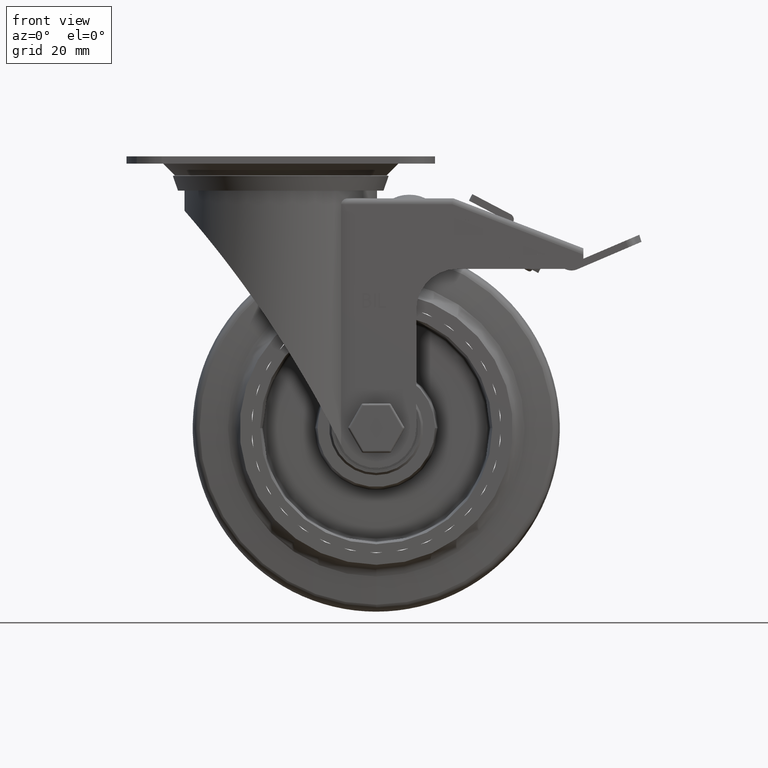
[diagram: clean part render]
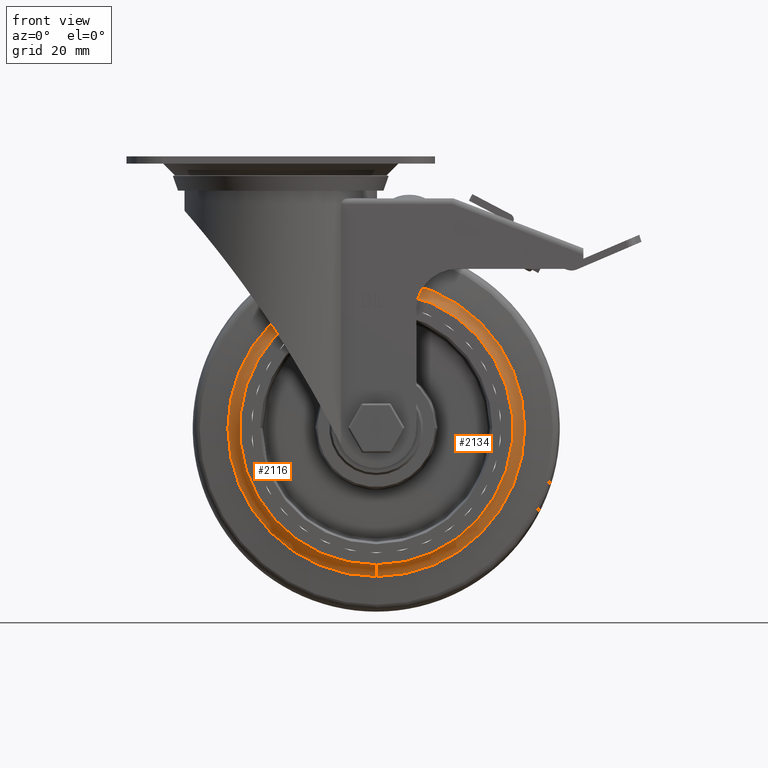
[diagram: same view with one multi-face feature highlighted, each face labeled with its STEP entity id]
A machine part, front view. The highlighted faces form ONE feature: a constant-radius fillet chain: 2 tangent blend faces with common blend radius 5 mm. The faces share edges in the B-rep.
Their STEP definitions:
[1] entity #2116 (Torus):
#2116=ADVANCED_FACE('67:3402',(#4028),#4029,.F.);
#4028=FACE_OUTER_BOUND('',#8106,.T.);
#4029=TOROIDAL_SURFACE('',#8107,0.0510980762113533,0.00500000000000001);
#8106=EDGE_LOOP('',(#18103,#18104,#18105,#18106));
#8107=AXIS2_PLACEMENT_3D('',#18107,#18108,#18109);
#18103=ORIENTED_EDGE('',*,*,#26281,.F.);
#18104=ORIENTED_EDGE('',*,*,#26282,.T.);
#18105=ORIENTED_EDGE('',*,*,#26283,.F.);
#18106=ORIENTED_EDGE('',*,*,#26284,.F.);
#18107=CARTESIAN_POINT('',(3.22129831291775E-17,-0.0219641016151377,0.0));
#18108=DIRECTION('',(2.48084430602702E-15,-1.0,-4.01205062912757E-31));
#18109=DIRECTION('',(0.0,4.01205062912757E-31,-1.0));
#26281=EDGE_CURVE('',#30384,#30385,#30386,.T.);
#26282=EDGE_CURVE('67:3438',#30384,#30387,#30388,.T.);
#26283=EDGE_CURVE('',#30389,#30387,#30390,.T.);
#26284=EDGE_CURVE('67:3441',#30385,#30389,#30391,.T.);
#30384=VERTEX_POINT('',#37156);
#30385=VERTEX_POINT('',#37157);
#30386=CIRCLE('',#37158,0.00500000000000001);
#30387=VERTEX_POINT('',#37159);
#30388=CIRCLE('',#37160,0.0505);
#30389=VERTEX_POINT('',#37161);
#30390=CIRCLE('',#37162,0.00500000000000001);
#30391=CIRCLE('',#37163,0.0465);
#37156=CARTESIAN_POINT('',(3.84086312337123E-17,-0.017,0.0505));
#37157=CARTESIAN_POINT('',(4.85722573273506E-17,-0.02,0.0465));
#37158=AXIS2_PLACEMENT_3D('',#47421,#47422,#47423);
#37159=CARTESIAN_POINT('',(5.54643409212634E-18,-0.017,-0.0505));
#37160=AXIS2_PLACEMENT_3D('',#47424,#47425,#47426);
#37161=CARTESIAN_POINT('',(2.16457452047693E-17,-0.02,-0.0465));
#37162=AXIS2_PLACEMENT_3D('',#47427,#47428,#47429);
#37163=AXIS2_PLACEMENT_3D('',#47430,#47431,#47432);
#47421=CARTESIAN_POINT('',(3.84706926766596E-17,-0.0219641016151377,0.0510980762113533));
#47422=DIRECTION('',(-1.0,-2.48084430602702E-15,1.22464679914735E-16));
#47423=DIRECTION('',(1.22464679914735E-16,-9.73892590568642E-32,1.0));
#47424=CARTESIAN_POINT('',(1.98978199027234E-17,-0.017,-6.82048606951684E-33));
#47425=DIRECTION('',(2.48084430602702E-15,-1.0,-4.01205062912757E-31));
#47426=DIRECTION('',(1.61721177720851E-16,5.41962586759289E-47,1.0));
#47427=CARTESIAN_POINT('',(2.59552735816954E-17,-0.0219641016151377,-0.0510980762113533));
#47428=DIRECTION('',(-1.0,-2.48084430602702E-15,1.22464679914735E-16));
#47429=DIRECTION('',(-1.22464679914735E-16,9.73892590568642E-32,-1.0));
#47430=CARTESIAN_POINT('',(2.73403528208045E-17,-0.02,-8.02410125825511E-33));
#47431=DIRECTION('',(2.48084430602702E-15,-1.0,-4.01205062912757E-31));
#47432=DIRECTION('',(1.61721177720851E-16,0.0,1.0));
[2] entity #2134 (Torus):
#2134=ADVANCED_FACE('67:3402',(#4065),#4066,.F.);
#4065=FACE_OUTER_BOUND('',#8143,.T.);
#4066=TOROIDAL_SURFACE('',#8144,0.0510980762113533,0.00500000000000001);
#8143=EDGE_LOOP('',(#18229,#18230,#18231,#18232));
#8144=AXIS2_PLACEMENT_3D('',#18233,#18234,#18235);
#18229=ORIENTED_EDGE('',*,*,#26281,.T.);
#18230=ORIENTED_EDGE('',*,*,#26319,.F.);
#18231=ORIENTED_EDGE('',*,*,#26283,.T.);
#18232=ORIENTED_EDGE('',*,*,#26318,.T.);
#18233=CARTESIAN_POINT('',(3.22129831291775E-17,-0.0219641016151377,0.0));
#18234=DIRECTION('',(2.48084430602702E-15,-1.0,-4.01205062912757E-31));
#18235=DIRECTION('',(0.0,4.01205062912757E-31,-1.0));
#26281=EDGE_CURVE('',#30384,#30385,#30386,.T.);
#26283=EDGE_CURVE('',#30389,#30387,#30390,.T.);
#26318=EDGE_CURVE('67:3438',#30387,#30384,#30441,.T.);
#26319=EDGE_CURVE('67:3441',#30389,#30385,#30442,.T.);
#30384=VERTEX_POINT('',#37156);
#30385=VERTEX_POINT('',#37157);
#30386=CIRCLE('',#37158,0.00500000000000001);
#30387=VERTEX_POINT('',#37159);
#30389=VERTEX_POINT('',#37161);
#30390=CIRCLE('',#37162,0.00500000000000001);
#30441=CIRCLE('',#37217,0.0505);
#30442=CIRCLE('',#37218,0.0465);
#37156=CARTESIAN_POINT('',(3.84086312337123E-17,-0.017,0.0505));
#37157=CARTESIAN_POINT('',(4.85722573273506E-17,-0.02,0.0465));
#37158=AXIS2_PLACEMENT_3D('',#47421,#47422,#47423);
#37159=CARTESIAN_POINT('',(5.54643409212634E-18,-0.017,-0.0505));
#37161=CARTESIAN_POINT('',(2.16457452047693E-17,-0.02,-0.0465));
#37162=AXIS2_PLACEMENT_3D('',#47427,#47428,#47429);
#37217=AXIS2_PLACEMENT_3D('',#47524,#47525,#47526);
#37218=AXIS2_PLACEMENT_3D('',#47527,#47528,#47529);
#47421=CARTESIAN_POINT('',(3.84706926766596E-17,-0.0219641016151377,0.0510980762113533));
#47422=DIRECTION('',(-1.0,-2.48084430602702E-15,1.22464679914735E-16));
#47423=DIRECTION('',(1.22464679914735E-16,-9.73892590568642E-32,1.0));
#47427=CARTESIAN_POINT('',(2.59552735816954E-17,-0.0219641016151377,-0.0510980762113533));
#47428=DIRECTION('',(-1.0,-2.48084430602702E-15,1.22464679914735E-16));
#47429=DIRECTION('',(-1.22464679914735E-16,9.73892590568642E-32,-1.0));
#47524=CARTESIAN_POINT('',(1.98978199027234E-17,-0.017,-6.82048606951684E-33));
#47525=DIRECTION('',(2.48084430602702E-15,-1.0,-4.01205062912757E-31));
#47526=DIRECTION('',(1.61721177720851E-16,5.41962586759289E-47,1.0));
#47527=CARTESIAN_POINT('',(2.73403528208045E-17,-0.02,-8.02410125825511E-33));
#47528=DIRECTION('',(2.48084430602702E-15,-1.0,-4.01205062912757E-31));
#47529=DIRECTION('',(1.61721177720851E-16,0.0,1.0));